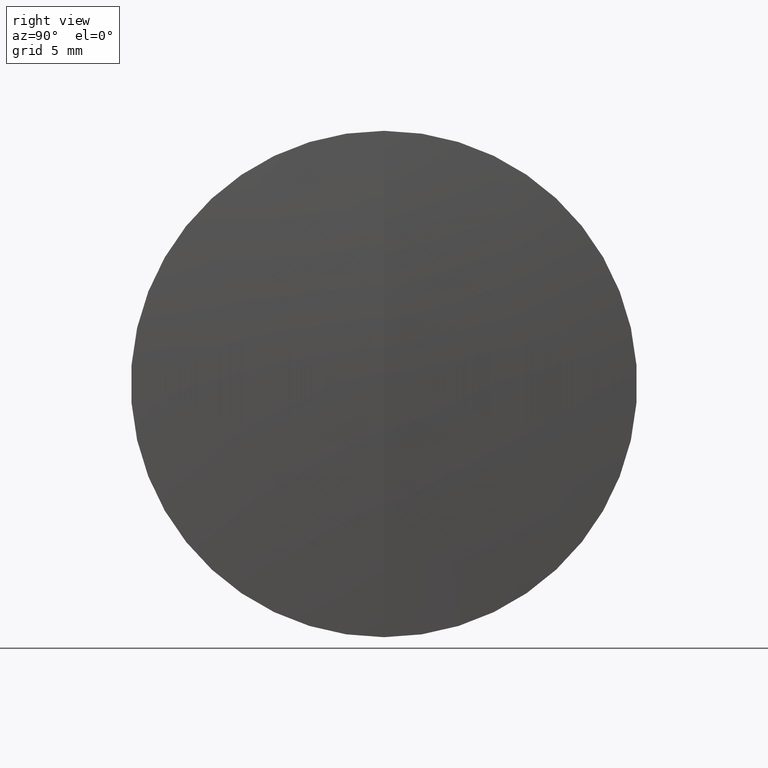
[diagram: clean part render]
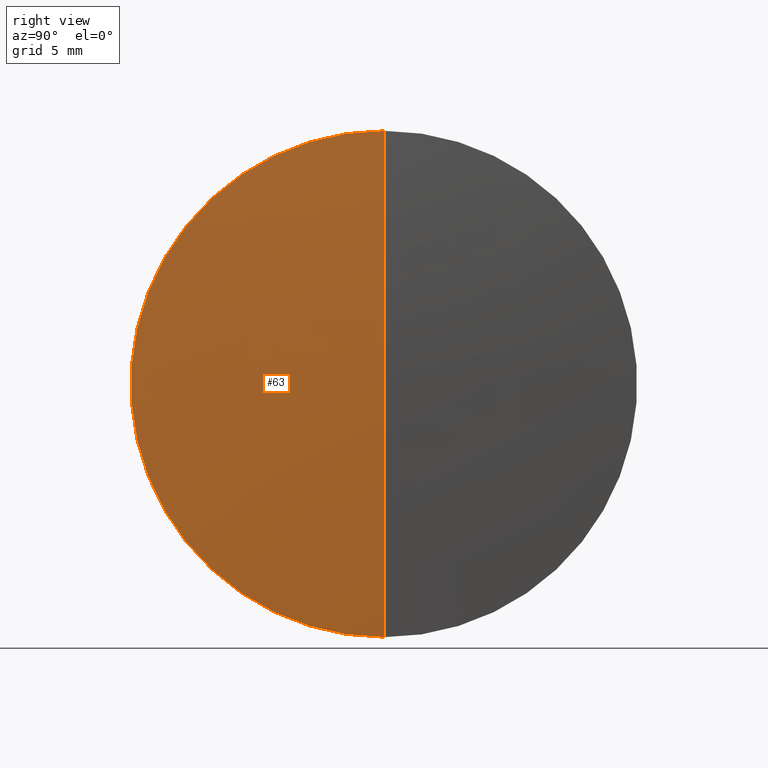
[diagram: same view with one face highlighted and labeled with its STEP entity id]
A machine part, right view. The second image highlights one B-rep face of the part: STEP entity #63.
In plain terms, the highlighted spherical surface has radius 165.2 mm.
Its self-contained STEP definition (entity closure, byte-faithful):
#3 = CIRCLE ( 'NONE', #226, 12.70000000000001000 ) ;
#12 = CARTESIAN_POINT ( 'NONE',  ( 298.6900972909085700, 1.555301434917140200E-015, -12.70000000000001000 ) ) ;
#26 = DIRECTION ( 'NONE',  ( -1.000000000000000000, -0.0000000000000000000, -0.0000000000000000000 ) ) ;
#27 = DIRECTION ( 'NONE',  ( 0.0000000000000000000, -1.224646799147353200E-016, 1.000000000000000000 ) ) ;
#62 = AXIS2_PLACEMENT_3D ( 'NONE', #331, #189, #340 ) ;
#63 = ADVANCED_FACE ( 'NONE', ( #235 ), #103, .T. ) ;
#76 = ORIENTED_EDGE ( 'NONE', *, *, #185, .T. ) ;
#78 = ORIENTED_EDGE ( 'NONE', *, *, #214, .F. ) ;
#81 = CARTESIAN_POINT ( 'NONE',  ( 299.1789865545650900, 0.0000000000000000000, 1.011558256095713300E-014 ) ) ;
#103 = SPHERICAL_SURFACE ( 'NONE', #251, 165.1999999999999300 ) ;
#120 = AXIS2_PLACEMENT_3D ( 'NONE', #345, #191, #27 ) ;
#128 = VERTEX_POINT ( 'NONE', #220 ) ;
#163 = VERTEX_POINT ( 'NONE', #12 ) ;
#185 = EDGE_CURVE ( 'NONE', #327, #128, #237, .T. ) ;
#189 = DIRECTION ( 'NONE',  ( 0.0000000000000000000, -1.000000000000000000, 0.0000000000000000000 ) ) ;
#191 = DIRECTION ( 'NONE',  ( -0.0000000000000000000, 1.000000000000000000, 1.224646799147353200E-016 ) ) ;
#212 = EDGE_LOOP ( 'NONE', ( #78, #76, #236 ) ) ;
#213 = DIRECTION ( 'NONE',  ( 0.0000000000000000000, 0.0000000000000000000, 1.000000000000000000 ) ) ;
#214 = EDGE_CURVE ( 'NONE', #327, #163, #232, .T. ) ;
#217 = CARTESIAN_POINT ( 'NONE',  ( 298.6900972909085700, 0.0000000000000000000, 0.0000000000000000000 ) ) ;
#220 = CARTESIAN_POINT ( 'NONE',  ( 298.6900972909085700, 0.0000000000000000000, 12.70000000000001000 ) ) ;
#226 = AXIS2_PLACEMENT_3D ( 'NONE', #217, #26, #213 ) ;
#227 = DIRECTION ( 'NONE',  ( 0.0000000000000000000, 0.0000000000000000000, 1.000000000000000000 ) ) ;
#232 = CIRCLE ( 'NONE', #120, 165.1999999999999300 ) ;
#235 = FACE_OUTER_BOUND ( 'NONE', #212, .T. ) ;
#236 = ORIENTED_EDGE ( 'NONE', *, *, #295, .F. ) ;
#237 = CIRCLE ( 'NONE', #62, 165.1999999999999300 ) ;
#251 = AXIS2_PLACEMENT_3D ( 'NONE', #257, #254, #227 ) ;
#254 = DIRECTION ( 'NONE',  ( 0.0000000000000000000, 1.000000000000000000, 0.0000000000000000000 ) ) ;
#257 = CARTESIAN_POINT ( 'NONE',  ( 133.9789865545651500, 0.0000000000000000000, 0.0000000000000000000 ) ) ;
#295 = EDGE_CURVE ( 'NONE', #163, #128, #3, .T. ) ;
#327 = VERTEX_POINT ( 'NONE', #81 ) ;
#331 = CARTESIAN_POINT ( 'NONE',  ( 133.9789865545651500, 0.0000000000000000000, 0.0000000000000000000 ) ) ;
#340 = DIRECTION ( 'NONE',  ( 0.0000000000000000000, 0.0000000000000000000, -1.000000000000000000 ) ) ;
#345 = CARTESIAN_POINT ( 'NONE',  ( 133.9789865545651500, 0.0000000000000000000, 0.0000000000000000000 ) ) ;